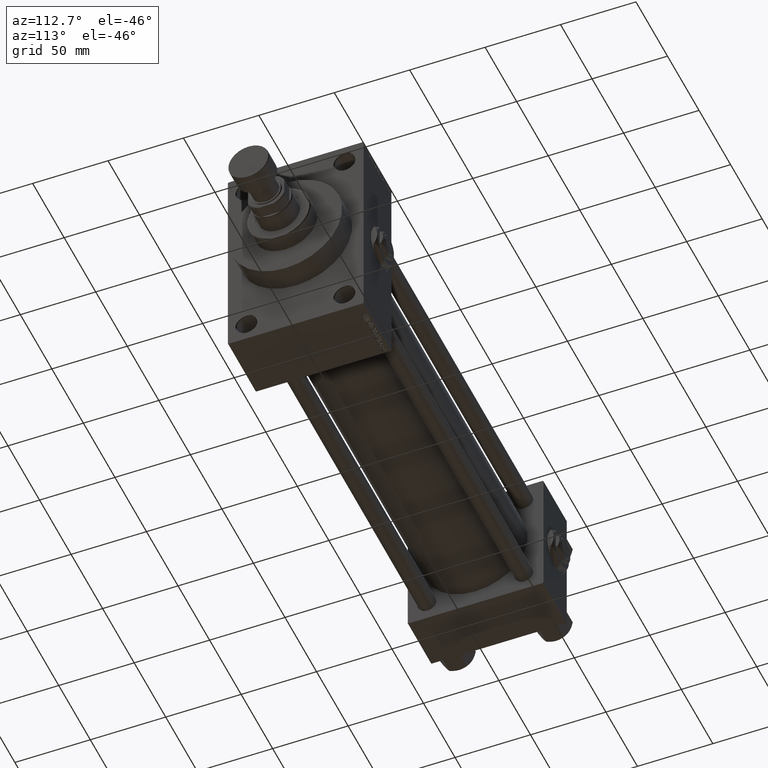
[diagram: clean part render]
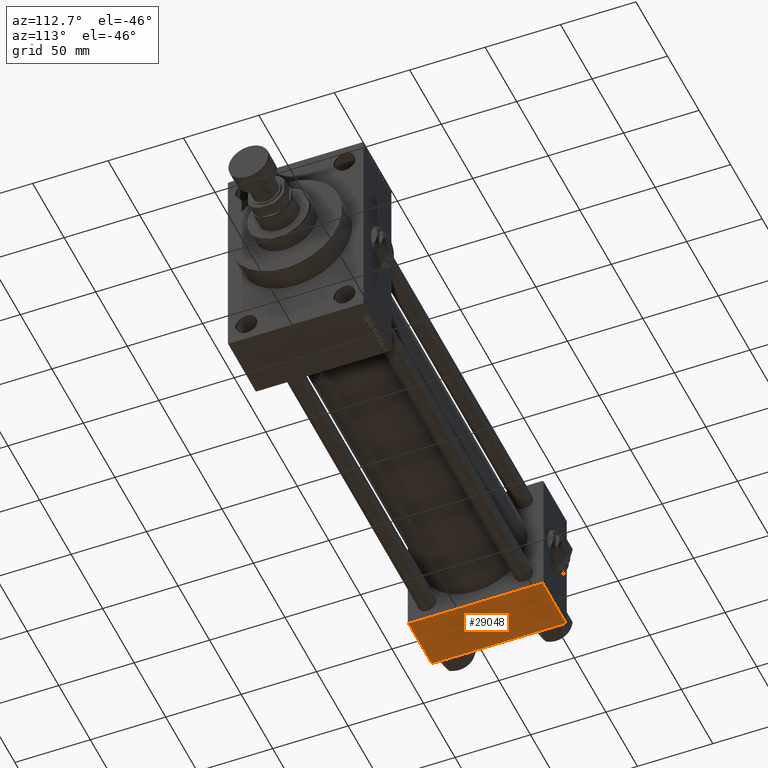
[diagram: same view with one face highlighted and labeled with its STEP entity id]
A machine part, auxiliary view. The second image highlights one B-rep face of the part: STEP entity #29048.
In plain terms, the highlighted planar face has unit normal (0, 0, -1).
Its self-contained STEP definition (entity closure, byte-faithful):
#1007 = ORIENTED_EDGE ( 'NONE', *, *, #30166, .T. ) ;
#2528 = DIRECTION ( 'NONE',  ( 0.000000000000000000, 1.541976423090495880E-16, -1.000000000000000000 ) ) ;
#6033 = PLANE ( 'NONE',  #46483 ) ;
#7911 = VECTOR ( 'NONE', #48762, 1000.000000000000000 ) ;
#10074 = LINE ( 'NONE', #13613, #25410 ) ;
#10719 = VECTOR ( 'NONE', #10919, 1000.000000000000000 ) ;
#10919 = DIRECTION ( 'NONE',  ( 0.000000000000000000, -1.000000000000000000, -1.541976423090495633E-16 ) ) ;
#13613 = CARTESIAN_POINT ( 'NONE',  ( 0.000000000000000000, -44.49999999999998579, -45.00000000000000000 ) ) ;
#14027 = CARTESIAN_POINT ( 'NONE',  ( 0.000000000000000000, 44.49999999999998579, -44.99999999999998579 ) ) ;
#14414 = VERTEX_POINT ( 'NONE', #14027 ) ;
#14702 = EDGE_CURVE ( 'NONE', #14414, #43979, #30577, .T. ) ;
#15012 = VECTOR ( 'NONE', #25714, 1000.000000000000000 ) ;
#17547 = EDGE_LOOP ( 'NONE', ( #45408, #39357, #1007, #39051 ) ) ;
#18073 = CARTESIAN_POINT ( 'NONE',  ( 37.00000000000000000, 44.99999999999998579, -44.99999999999998579 ) ) ;
#20936 = DIRECTION ( 'NONE',  ( -1.000000000000000000, 0.000000000000000000, 0.000000000000000000 ) ) ;
#21421 = DIRECTION ( 'NONE',  ( 0.000000000000000000, 1.000000000000000000, 1.541976423090495880E-16 ) ) ;
#22762 = CARTESIAN_POINT ( 'NONE',  ( 0.000000000000000000, 44.99999999999998579, -44.99999999999998579 ) ) ;
#24831 = EDGE_CURVE ( 'NONE', #14414, #34162, #26203, .T. ) ;
#25410 = VECTOR ( 'NONE', #20936, 1000.000000000000000 ) ;
#25714 = DIRECTION ( 'NONE',  ( 1.000000000000000000, 0.000000000000000000, 0.000000000000000000 ) ) ;
#26203 = LINE ( 'NONE', #37540, #15012 ) ;
#27267 = VERTEX_POINT ( 'NONE', #39723 ) ;
#29048 = ADVANCED_FACE ( 'NONE', ( #37022 ), #6033, .T. ) ;
#30166 = EDGE_CURVE ( 'NONE', #34162, #27267, #40996, .T. ) ;
#30577 = LINE ( 'NONE', #22762, #10719 ) ;
#34162 = VERTEX_POINT ( 'NONE', #44345 ) ;
#37022 = FACE_OUTER_BOUND ( 'NONE', #17547, .T. ) ;
#37540 = CARTESIAN_POINT ( 'NONE',  ( 37.00000000000000000, 44.49999999999998579, -44.99999999999998579 ) ) ;
#39051 = ORIENTED_EDGE ( 'NONE', *, *, #40820, .T. ) ;
#39357 = ORIENTED_EDGE ( 'NONE', *, *, #24831, .T. ) ;
#39723 = CARTESIAN_POINT ( 'NONE',  ( 37.00000000000000000, -44.49999999999995737, -45.00000000000000000 ) ) ;
#40820 = EDGE_CURVE ( 'NONE', #27267, #43979, #10074, .T. ) ;
#40996 = LINE ( 'NONE', #18073, #7911 ) ;
#43979 = VERTEX_POINT ( 'NONE', #49702 ) ;
#44345 = CARTESIAN_POINT ( 'NONE',  ( 37.00000000000000000, 44.49999999999998579, -44.99999999999998579 ) ) ;
#45408 = ORIENTED_EDGE ( 'NONE', *, *, #14702, .F. ) ;
#46483 = AXIS2_PLACEMENT_3D ( 'NONE', #49295, #2528, #21421 ) ;
#48762 = DIRECTION ( 'NONE',  ( 0.000000000000000000, -1.000000000000000000, -1.541976423090495633E-16 ) ) ;
#49295 = CARTESIAN_POINT ( 'NONE',  ( 37.00000000000000000, 44.99999999999998579, -44.99999999999998579 ) ) ;
#49702 = CARTESIAN_POINT ( 'NONE',  ( 0.000000000000000000, -44.49999999999995737, -45.00000000000000000 ) ) ;